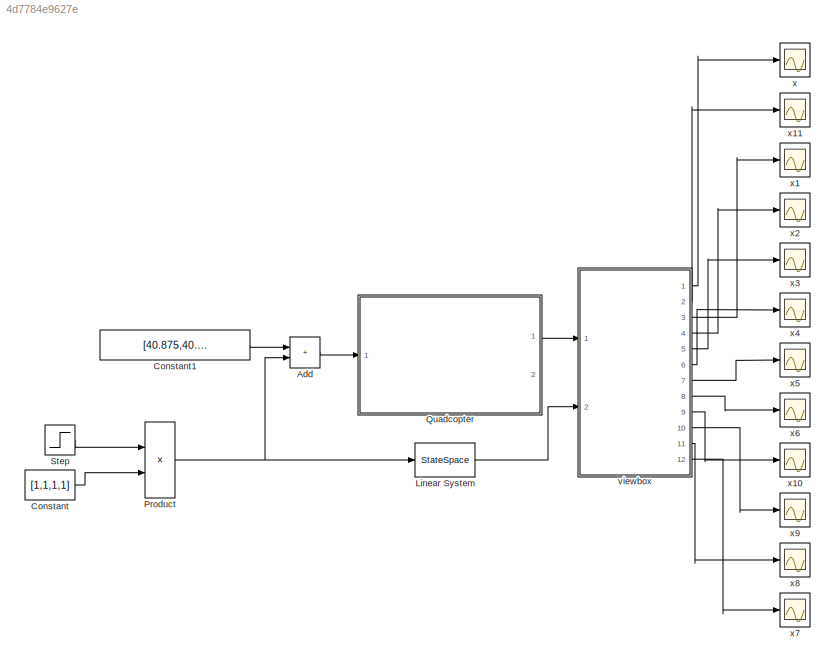
MODEL slx_4d7784e9627e
KIND model
CONFIG AbsTol = auto
CONFIG EnableMultiTasking = on
CONFIG FixedStep = auto
CONFIG MaxStep = auto
CONFIG MinStep = auto
CONFIG RelTol = 1e-6
CONFIG SampleTimeConstraint = Unconstrained
CONFIG Solver = ode45
CONFIG SolverName = ode45
CONFIG StartTime = 0.0
CONFIG StopTime = 5
BLOCK [Sum] Add
  IconShape = rectangular
  Ports = [2, 1]
BLOCK [Constant] Constant
  Value = [1,1,1,1]
BLOCK [Constant] Constant1
  Value = [40.875,40.875,40.875,40.875]
BLOCK [StateSpace] Linear System 
  A = sys.A
  B = sys.B
  C = eye(12)
  ContinuousStateAttributes = "states"
  D = zeros(12,4)
  InitialCondition = x0_quadcopter
  Ports = [1, 1]
BLOCK [Product] Product
  Ports = [2, 1]
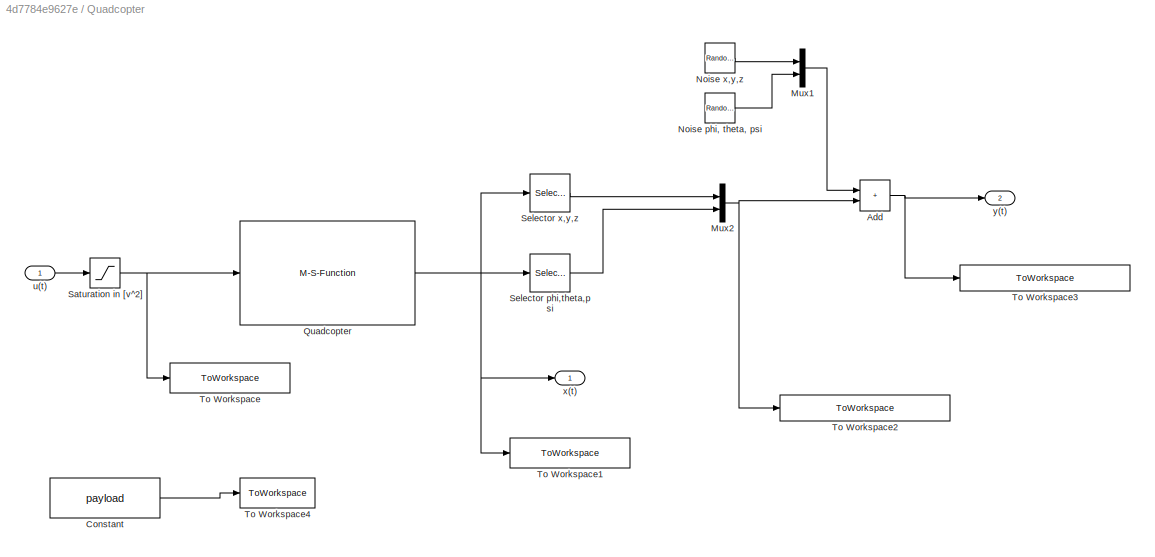
BLOCK [SubSystem] Quadcopter
  Ports = [1, 2]
  RequestExecContextInheritance = off
BLOCK [Sum] Quadcopter/Add
  IconShape = rectangular
  Ports = [2, 1]
BLOCK [Constant] Quadcopter/Constant
  Value = payload
BLOCK [Mux] Quadcopter/Mux1
  DisplayOption = bar
  Inputs = 2
  Ports = [2, 1]
BLOCK [Mux] Quadcopter/Mux2
  DisplayOption = bar
  Inputs = 2
  Ports = [2, 1]
BLOCK [RandomNumber] Quadcopter/Noise  x,y,z
  SampleTime = 0.05
  Variance = [1 1 1]*(0.005)^2
BLOCK [RandomNumber] Quadcopter/Noise phi, theta, psi
  SampleTime = 0.05
  Variance = [1 1 1]*(0.0087)^2
BLOCK [M-S-Function] Quadcopter/Quadcopter
  FunctionName = quadcopter_sfunction
  Parameters = x0, payload
  Ports = [1, 1]
BLOCK [Saturate] Quadcopter/Saturation in [v^2]
  LowerLimit = 0
  UpperLimit = 100
BLOCK [Selector] Quadcopter/Selector phi,theta,psi
  IndexOptions = Index vector (dialog)
  Indices = [7 8 9]
  OutputSizes = 1
  Ports = [1, 1]
BLOCK [Selector] Quadcopter/Selector x,y,z
  IndexOptions = Index vector (dialog)
  Indices = [1 2 3]
  OutputSizes = 1
  Ports = [1, 1]
BLOCK [ToWorkspace] Quadcopter/To Workspace
  MaxDataPoints = inf
  Ports = [1]
  SampleTime = -1
  SaveFormat = Structure With Time
  VariableName = inputs_quadcopter
BLOCK [ToWorkspace] Quadcopter/To Workspace1
  MaxDataPoints = inf
  Ports = [1]
  SampleTime = -1
  SaveFormat = Structure With Time
  VariableName = states_quadcopter
BLOCK [ToWorkspace] Quadcopter/To Workspace2
  MaxDataPoints = inf
  Ports = [1]
  SampleTime = -1
  SaveFormat = Structure With Time
  VariableName = outputs_quadcopter_nonoise
BLOCK [ToWorkspace] Quadcopter/To Workspace3
  MaxDataPoints = inf
  Ports = [1]
  SampleTime = -1
  SaveFormat = Structure With Time
  VariableName = outputs_quadcopter_noise
BLOCK [ToWorkspace] Quadcopter/To Workspace4
  MaxDataPoints = inf
  Ports = [1]
  SampleTime = -1
  VariableName = payload_quadcopter
BLOCK [Inport] Quadcopter/u(t)
BLOCK [Outport] Quadcopter/x(t)
BLOCK [Outport] Quadcopter/y(t)
  Port = 2
BLOCK [Step] Step
  After = 5
  SampleTime = 0
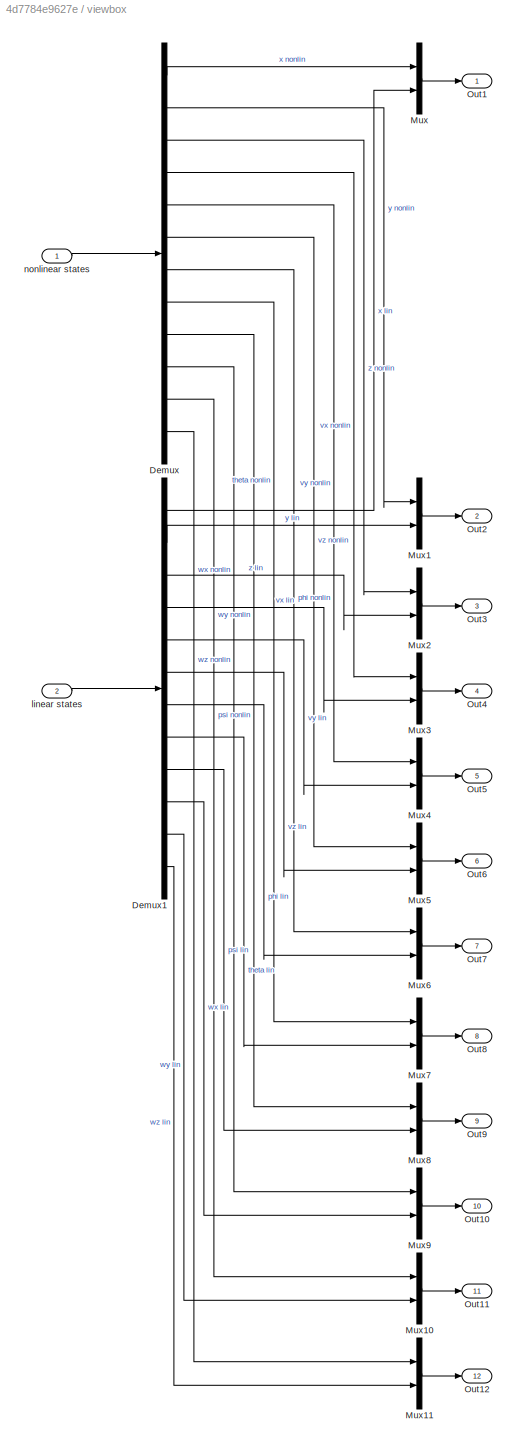
BLOCK [SubSystem] viewbox
  Ports = [2, 12]
  RequestExecContextInheritance = off
BLOCK [Demux] viewbox/Demux
  Outputs = 12
  Ports = [1, 12]
BLOCK [Demux] viewbox/Demux1
  Outputs = 12
  Ports = [1, 12]
BLOCK [Mux] viewbox/Mux
  DisplayOption = bar
  Inputs = 2
  Ports = [2, 1]
BLOCK [Mux] viewbox/Mux1
  DisplayOption = bar
  Inputs = 2
  Ports = [2, 1]
BLOCK [Mux] viewbox/Mux10
  DisplayOption = bar
  Inputs = 2
  Ports = [2, 1]
BLOCK [Mux] viewbox/Mux11
  DisplayOption = bar
  Inputs = 2
  Ports = [2, 1]
BLOCK [Mux] viewbox/Mux2
  DisplayOption = bar
  Inputs = 2
  Ports = [2, 1]
BLOCK [Mux] viewbox/Mux3
  DisplayOption = bar
  Inputs = 2
  Ports = [2, 1]
BLOCK [Mux] viewbox/Mux4
  DisplayOption = bar
  Inputs = 2
  Ports = [2, 1]
BLOCK [Mux] viewbox/Mux5
  DisplayOption = bar
  Inputs = 2
  Ports = [2, 1]
BLOCK [Mux] viewbox/Mux6
  DisplayOption = bar
  Inputs = 2
  Ports = [2, 1]
BLOCK [Mux] viewbox/Mux7
  DisplayOption = bar
  Inputs = 2
  Ports = [2, 1]
BLOCK [Mux] viewbox/Mux8
  DisplayOption = bar
  Inputs = 2
  Ports = [2, 1]
BLOCK [Mux] viewbox/Mux9
  DisplayOption = bar
  Inputs = 2
  Ports = [2, 1]
BLOCK [Outport] viewbox/Out1
BLOCK [Outport] viewbox/Out10
  Port = 10
BLOCK [Outport] viewbox/Out11
  Port = 11
BLOCK [Outport] viewbox/Out12
  Port = 12
BLOCK [Outport] viewbox/Out2
  Port = 2
BLOCK [Outport] viewbox/Out3
  Port = 3
BLOCK [Outport] viewbox/Out4
  Port = 4
BLOCK [Outport] viewbox/Out5
  Port = 5
BLOCK [Outport] viewbox/Out6
  Port = 6
BLOCK [Outport] viewbox/Out7
  Port = 7
BLOCK [Outport] viewbox/Out8
  Port = 8
BLOCK [Outport] viewbox/Out9
  Port = 9
BLOCK [Inport] viewbox/linear states
  Port = 2
BLOCK [Inport] viewbox/nonlinear states
BLOCK [Scope] x
  Floating = off
  NumInputPorts = 1
  Ports = [1]
  ScopeSpecificationString = Simulink.scopes.TimeScopeBlockCfg('CurrentConfiguration', extmgr.ConfigurationSet(extmgr.Configuration('Core','General UI',true,'FigureColor',[1 1 1]),extmgr.Configuration('Core','Source UI',true),extmgr.Configuration('Sources','WiredSimulink',true,'DataLoggingVariableName','ScopeData1'),extmgr.Configuration('Visuals','Time Domain',true,'SerializedDisplays',{struct('MinYLimReal','-1.00000','MaxYLi...<+1666ch>
BLOCK [Scope] x1
  Floating = off
  NumInputPorts = 1
  Ports = [1]
  ScopeSpecificationString = Simulink.scopes.TimeScopeBlockCfg('CurrentConfiguration', extmgr.ConfigurationSet(extmgr.Configuration('Core','General UI',true,'FigureColor',[1 1 1]),extmgr.Configuration('Core','Source UI',true),extmgr.Configuration('Sources','WiredSimulink',true),extmgr.Configuration('Visuals','Time Domain',true,'SerializedDisplays',{struct('MinYLimReal','-0.6812','MaxYLimReal','6.13081','YLabelReal','','MinYLi...<+1625ch>
BLOCK [Scope] x10
  Floating = off
  NumInputPorts = 1
  Ports = [1]
  ScopeSpecificationString = Simulink.scopes.TimeScopeBlockCfg('CurrentConfiguration', extmgr.ConfigurationSet(extmgr.Configuration('Core','General UI',true,'FigureColor',[1 1 1]),extmgr.Configuration('Core','Source UI',true),extmgr.Configuration('Sources','WiredSimulink',true,'DataLoggingVariableName','ScopeData10'),extmgr.Configuration('Visuals','Time Domain',true,'SerializedDisplays',{struct('MinYLimReal','-1.00000','MaxYL...<+1651ch>
BLOCK [Scope] x11
  Floating = off
  NumInputPorts = 1
  Ports = [1]
  ScopeSpecificationString = Simulink.scopes.TimeScopeBlockCfg('CurrentConfiguration', extmgr.ConfigurationSet(extmgr.Configuration('Core','General UI',true,'FigureColor',[1 1 1]),extmgr.Configuration('Core','Source UI',true),extmgr.Configuration('Sources','WiredSimulink',true,'DataLoggingVariableName','ScopeData11'),extmgr.Configuration('Visuals','Time Domain',true,'SerializedDisplays',{struct('MinYLimReal','-1.00000','MaxYL...<+1667ch>
BLOCK [Scope] x2
  Floating = off
  NumInputPorts = 1
  Ports = [1]
  ScopeSpecificationString = Simulink.scopes.TimeScopeBlockCfg('CurrentConfiguration', extmgr.ConfigurationSet(extmgr.Configuration('Core','General UI',true,'FigureColor',[1 1 1]),extmgr.Configuration('Core','Source UI',true),extmgr.Configuration('Sources','WiredSimulink',true,'DataLoggingVariableName','ScopeData2'),extmgr.Configuration('Visuals','Time Domain',true,'SerializedDisplays',{struct('MinYLimReal','-1.00000','MaxYLi...<+1650ch>
BLOCK [Scope] x3
  Floating = off
  NumInputPorts = 1
  Ports = [1]
  ScopeSpecificationString = Simulink.scopes.TimeScopeBlockCfg('CurrentConfiguration', extmgr.ConfigurationSet(extmgr.Configuration('Core','General UI',true,'FigureColor',[1 1 1]),extmgr.Configuration('Core','Source UI',true),extmgr.Configuration('Sources','WiredSimulink',true,'DataLoggingVariableName','ScopeData3'),extmgr.Configuration('Visuals','Time Domain',true,'SerializedDisplays',{struct('MinYLimReal','-1.00000','MaxYLi...<+1666ch>
BLOCK [Scope] x4
  Floating = off
  NumInputPorts = 1
  Ports = [1]
  ScopeSpecificationString = Simulink.scopes.TimeScopeBlockCfg('CurrentConfiguration', extmgr.ConfigurationSet(extmgr.Configuration('Core','General UI',true,'FigureColor',[1 1 1]),extmgr.Configuration('Core','Source UI',true),extmgr.Configuration('Sources','WiredSimulink',true,'DataLoggingVariableName','ScopeData4'),extmgr.Configuration('Visuals','Time Domain',true,'SerializedDisplays',{struct('MinYLimReal','-0.2594','MaxYLim...<+1664ch>
BLOCK [Scope] x5
  Floating = off
  NumInputPorts = 1
  Ports = [1]
  ScopeSpecificationString = Simulink.scopes.TimeScopeBlockCfg('CurrentConfiguration', extmgr.ConfigurationSet(extmgr.Configuration('Core','General UI',true,'FigureColor',[1 1 1]),extmgr.Configuration('Core','Source UI',true),extmgr.Configuration('Sources','WiredSimulink',true,'DataLoggingVariableName','ScopeData5'),extmgr.Configuration('Visuals','Time Domain',true,'SerializedDisplays',{struct('MinYLimReal','-1.00000','MaxYLi...<+1650ch>
BLOCK [Scope] x6
  Floating = off
  NumInputPorts = 1
  Ports = [1]
  ScopeSpecificationString = Simulink.scopes.TimeScopeBlockCfg('CurrentConfiguration', extmgr.ConfigurationSet(extmgr.Configuration('Core','General UI',true,'FigureColor',[1 1 1]),extmgr.Configuration('Core','Source UI',true),extmgr.Configuration('Sources','WiredSimulink',true,'DataLoggingVariableName','ScopeData6'),extmgr.Configuration('Visuals','Time Domain',true,'SerializedDisplays',{struct('MinYLimReal','-1.00000','MaxYLi...<+1650ch>
BLOCK [Scope] x7
  Floating = off
  NumInputPorts = 1
  Ports = [1]
  ScopeSpecificationString = Simulink.scopes.TimeScopeBlockCfg('CurrentConfiguration', extmgr.ConfigurationSet(extmgr.Configuration('Core','General UI',true,'FigureColor',[1 1 1]),extmgr.Configuration('Core','Source UI',true),extmgr.Configuration('Sources','WiredSimulink',true,'DataLoggingVariableName','ScopeData7'),extmgr.Configuration('Visuals','Time Domain',true,'SerializedDisplays',{struct('MinYLimReal','-1.00000','MaxYLi...<+1650ch>
BLOCK [Scope] x8
  Floating = off
  NumInputPorts = 1
  Ports = [1]
  ScopeSpecificationString = Simulink.scopes.TimeScopeBlockCfg('CurrentConfiguration', extmgr.ConfigurationSet(extmgr.Configuration('Core','General UI',true,'FigureColor',[1 1 1]),extmgr.Configuration('Core','Source UI',true),extmgr.Configuration('Sources','WiredSimulink',true,'DataLoggingVariableName','ScopeData8'),extmgr.Configuration('Visuals','Time Domain',true,'SerializedDisplays',{struct('MinYLimReal','-1.00000','MaxYLi...<+1650ch>
BLOCK [Scope] x9
  Floating = off
  NumInputPorts = 1
  Ports = [1]
  ScopeSpecificationString = Simulink.scopes.TimeScopeBlockCfg('CurrentConfiguration', extmgr.ConfigurationSet(extmgr.Configuration('Core','General UI',true,'FigureColor',[1 1 1]),extmgr.Configuration('Core','Source UI',true),extmgr.Configuration('Sources','WiredSimulink',true,'DataLoggingVariableName','ScopeData9'),extmgr.Configuration('Visuals','Time Domain',true,'SerializedDisplays',{struct('MinYLimReal','-1.00000','MaxYLi...<+1650ch>
LINE Add:1 -> Quadcopter:1
LINE Constant1:1 -> Add:1
LINE Constant:1 -> Product:2
LINE Linear System :1 -> viewbox:2
NET Product:1 -> Add:2, Linear System :1
NET Quadcopter/Add:1 -> Quadcopter/To Workspace3:1, Quadcopter/y(t):1
LINE Quadcopter/Constant:1 -> Quadcopter/To Workspace4:1
LINE Quadcopter/Mux1:1 -> Quadcopter/Add:1
NET Quadcopter/Mux2:1 -> Quadcopter/Add:2, Quadcopter/To Workspace2:1
LINE Quadcopter/Noise  x,y,z:1 -> Quadcopter/Mux1:1
LINE Quadcopter/Noise phi, theta, psi:1 -> Quadcopter/Mux1:2
NET Quadcopter/Quadcopter:1 -> Quadcopter/Selector phi,theta,psi:1, Quadcopter/Selector x,y,z:1, Quadcopter/To Workspace1:1, Quadcopter/x(t):1
NET Quadcopter/Saturation in [v^2]:1 -> Quadcopter/Quadcopter:1, Quadcopter/To Workspace:1
LINE Quadcopter/Selector phi,theta,psi:1 -> Quadcopter/Mux2:2
LINE Quadcopter/Selector x,y,z:1 -> Quadcopter/Mux2:1
LINE Quadcopter/u(t):1 -> Quadcopter/Saturation in [v^2]:1
LINE Quadcopter:1 -> viewbox:1
LINE Step:1 -> Product:1
LINE viewbox/Demux1:1 -> viewbox/Mux:2
LINE viewbox/Demux1:10 -> viewbox/Mux9:2
LINE viewbox/Demux1:11 -> viewbox/Mux10:2
LINE viewbox/Demux1:12 -> viewbox/Mux11:2
LINE viewbox/Demux1:2 -> viewbox/Mux1:2
LINE viewbox/Demux1:3 -> viewbox/Mux2:2
LINE viewbox/Demux1:4 -> viewbox/Mux3:2
LINE viewbox/Demux1:5 -> viewbox/Mux4:2
LINE viewbox/Demux1:6 -> viewbox/Mux5:2
LINE viewbox/Demux1:7 -> viewbox/Mux6:2
LINE viewbox/Demux1:8 -> viewbox/Mux7:2
LINE viewbox/Demux1:9 -> viewbox/Mux8:2
LINE viewbox/Demux:1 -> viewbox/Mux:1
LINE viewbox/Demux:10 -> viewbox/Mux9:1
LINE viewbox/Demux:11 -> viewbox/Mux10:1
LINE viewbox/Demux:12 -> viewbox/Mux11:1
LINE viewbox/Demux:2 -> viewbox/Mux1:1
LINE viewbox/Demux:3 -> viewbox/Mux2:1
LINE viewbox/Demux:4 -> viewbox/Mux3:1
LINE viewbox/Demux:5 -> viewbox/Mux4:1
LINE viewbox/Demux:6 -> viewbox/Mux5:1
LINE viewbox/Demux:7 -> viewbox/Mux6:1
LINE viewbox/Demux:8 -> viewbox/Mux7:1
LINE viewbox/Demux:9 -> viewbox/Mux8:1
LINE viewbox/Mux10:1 -> viewbox/Out11:1
LINE viewbox/Mux11:1 -> viewbox/Out12:1
LINE viewbox/Mux1:1 -> viewbox/Out2:1
LINE viewbox/Mux2:1 -> viewbox/Out3:1
LINE viewbox/Mux3:1 -> viewbox/Out4:1
LINE viewbox/Mux4:1 -> viewbox/Out5:1
LINE viewbox/Mux5:1 -> viewbox/Out6:1
LINE viewbox/Mux6:1 -> viewbox/Out7:1
LINE viewbox/Mux7:1 -> viewbox/Out8:1
LINE viewbox/Mux8:1 -> viewbox/Out9:1
LINE viewbox/Mux9:1 -> viewbox/Out10:1
LINE viewbox/Mux:1 -> viewbox/Out1:1
LINE viewbox/linear states:1 -> viewbox/Demux1:1
LINE viewbox/nonlinear states:1 -> viewbox/Demux:1
LINE viewbox:1 -> x:1
LINE viewbox:10 -> x9:1
LINE viewbox:11 -> x8:1
LINE viewbox:12 -> x7:1
LINE viewbox:2 -> x11:1
LINE viewbox:3 -> x1:1
LINE viewbox:4 -> x2:1
LINE viewbox:5 -> x3:1
LINE viewbox:6 -> x4:1
LINE viewbox:7 -> x5:1
LINE viewbox:8 -> x6:1
LINE viewbox:9 -> x10:1
note: NET lines group one-source signal fan-out (src -> all destinations, sorted); 1:1 wires keep LINE
